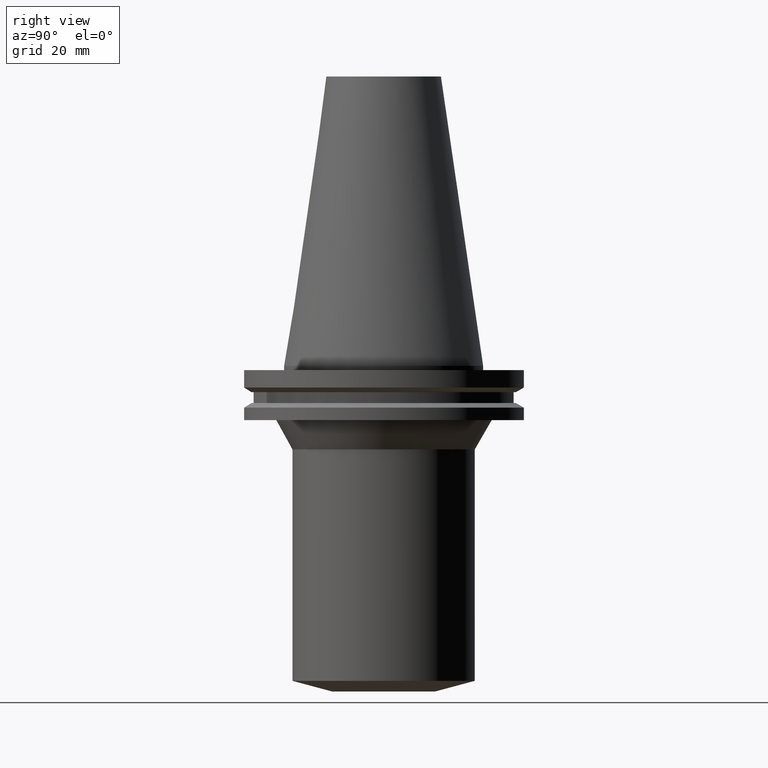
[diagram: clean part render]
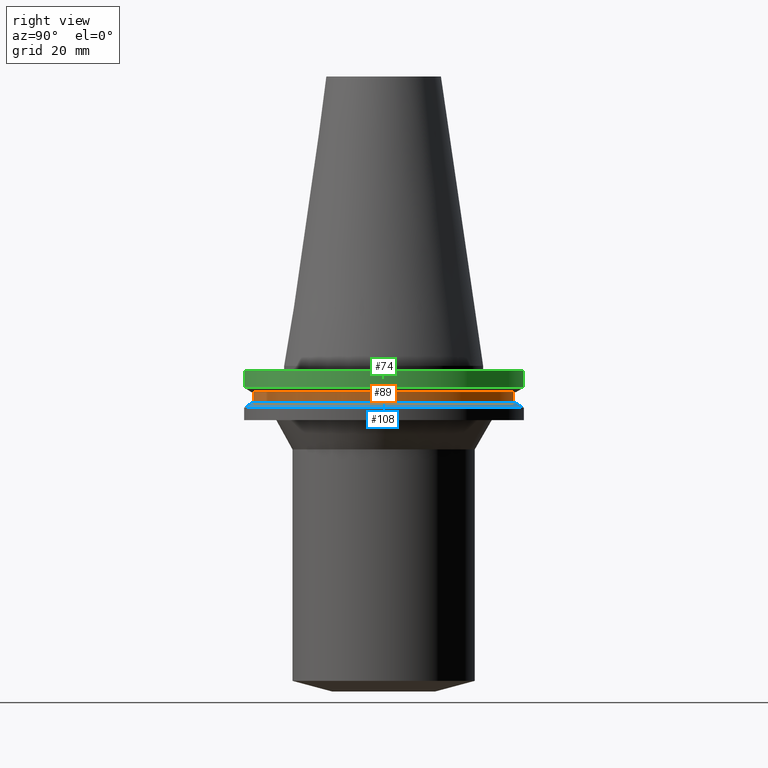
[diagram: same view with three faces highlighted in distinct colors, each labeled with its STEP entity id]
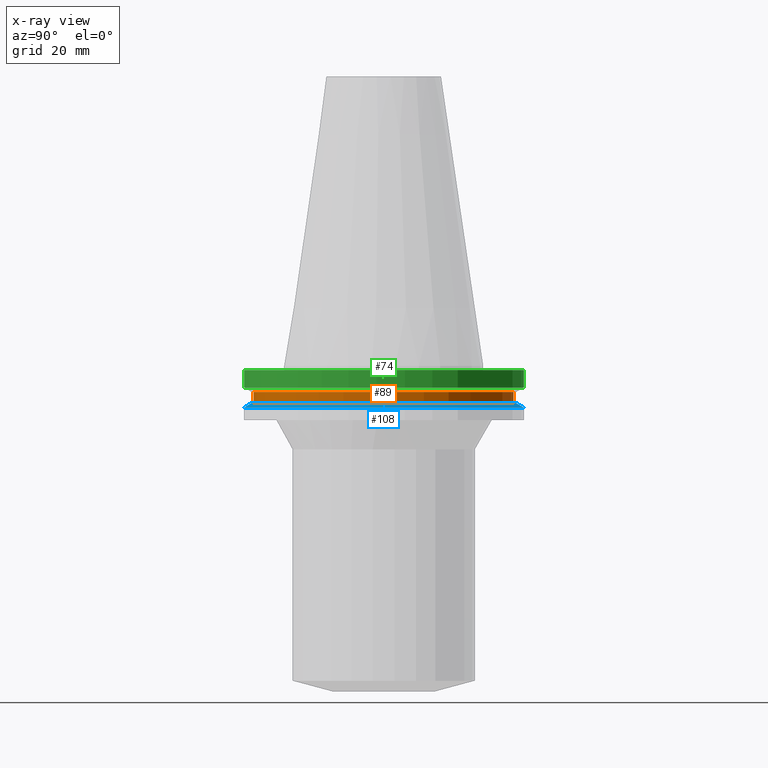
[diagram: x-ray of the same camera — body ghosted, the three highlighted faces saturated]
A machine part, right view with three faces highlighted in distinct colors.
The next image is the same camera in x-ray (body ghosted, the three faces saturated) — at least one of them is partly hidden behind the body in this view.
Their STEP definitions:

[orange] entity #89 — the highlighted cylindrical surface (bore or boss wall) has radius 45.645 mm, axis along (0, 0, -1).
#67=EDGE_CURVE('Unnamed[1]',#171,#171,#172,.T.);
#89=ADVANCED_FACE('Unnamed[1]',(#204,#205),#206,.T.);
#110=EDGE_CURVE('Unnamed[1]',#238,#238,#239,.T.);
#171=VERTEX_POINT('',#308);
#172=CIRCLE('',#309,45.645);
#204=FACE_BOUND('',#350,.T.);
#205=FACE_BOUND('',#351,.T.);
#206=CYLINDRICAL_SURFACE('',#352,45.645);
#238=VERTEX_POINT('',#392);
#239=CIRCLE('',#393,45.645);
#308=CARTESIAN_POINT('',(7.98469713044073E-016,45.645,-13.04));
#309=AXIS2_PLACEMENT_3D('',#463,#464,#465);
#350=EDGE_LOOP('',(#499));
#351=EDGE_LOOP('',(#500));
#352=AXIS2_PLACEMENT_3D('',#501,#502,#503);
#392=CARTESIAN_POINT('',(5.63337527607782E-016,45.645,-9.2));
#393=AXIS2_PLACEMENT_3D('',#539,#540,#541);
#463=CARTESIAN_POINT('',(7.98469713044074E-016,1.59693942608815E-015,-13.04));
#464=DIRECTION('',(6.12323399573677E-017,1.22464679914735E-016,-1.0));
#465=DIRECTION('',(-1.23259516440783E-032,1.0,1.22464679914735E-016));
#499=ORIENTED_EDGE('',*,*,#67,.F.);
#500=ORIENTED_EDGE('',*,*,#110,.T.);
#501=CARTESIAN_POINT('',(6.80903620325929E-016,1.36180724065186E-015,-11.12));
#502=DIRECTION('',(6.12323399573677E-017,1.22464679914735E-016,-1.0));
#503=DIRECTION('',(-1.23259516440783E-032,1.0,1.22464679914735E-016));
#539=CARTESIAN_POINT('',(5.63337527607783E-016,1.12667505521557E-015,-9.2));
#540=DIRECTION('',(6.12323399573677E-017,1.22464679914735E-016,-1.0));
#541=DIRECTION('',(-1.23259516440783E-032,1.0,1.22464679914735E-016));

[blue] entity #108 — the highlighted conical surface has half-angle 60 deg.
#76=EDGE_CURVE('Unnamed[1]',#185,#185,#186,.T.);
#108=ADVANCED_FACE('Unnamed[1]',(#234,#235),#236,.T.);
#112=EDGE_CURVE('Unnamed[1]',#241,#241,#242,.T.);
#185=VERTEX_POINT('',#326);
#186=CIRCLE('',#327,46.43053755);
#234=FACE_BOUND('',#387,.T.);
#235=FACE_BOUND('',#388,.T.);
#236=CONICAL_SURFACE('',#389,47.821518775,1.04719755103023);
#241=VERTEX_POINT('',#396);
#242=CIRCLE('',#397,49.2125);
#326=CARTESIAN_POINT('',(7.98469713044073E-016,46.43053755,-13.04));
#327=AXIS2_PLACEMENT_3D('',#478,#479,#480);
#387=EDGE_LOOP('',(#534));
#388=EDGE_LOOP('',(#535));
#389=AXIS2_PLACEMENT_3D('',#536,#537,#538);
#396=CARTESIAN_POINT('',(8.96819062732941E-016,49.2125,-14.64616677));
#397=AXIS2_PLACEMENT_3D('',#542,#543,#544);
#478=CARTESIAN_POINT('',(7.98469713044074E-016,1.59693942608815E-015,-13.04));
#479=DIRECTION('',(6.12323399573677E-017,1.22464679914735E-016,-1.0));
#480=DIRECTION('',(-1.23259516440783E-032,1.0,1.22464679914735E-016));
#534=ORIENTED_EDGE('',*,*,#112,.F.);
#535=ORIENTED_EDGE('',*,*,#76,.T.);
#536=CARTESIAN_POINT('',(8.47644387888508E-016,1.69528877577702E-015,-13.843083385));
#537=DIRECTION('',(6.12323399573677E-017,1.22464679914735E-016,-1.0));
#538=DIRECTION('',(-1.23259516440783E-032,1.0,1.22464679914735E-016));
#542=CARTESIAN_POINT('',(8.96819062732942E-016,1.79363812546588E-015,-14.64616677));
#543=DIRECTION('',(6.12323399573677E-017,1.22464679914735E-016,-1.0));
#544=DIRECTION('',(-1.23259516440783E-032,1.0,1.22464679914735E-016));

[green] entity #74 — the highlighted cylindrical surface (bore or boss wall) has radius 49.2125 mm, axis along (0, 0, -1).
#74=ADVANCED_FACE('Unnamed[1]',(#181,#182),#183,.T.);
#94=EDGE_CURVE('Unnamed[1]',#212,#212,#213,.T.);
#116=EDGE_CURVE('Unnamed[1]',#247,#247,#248,.T.);
#181=FACE_BOUND('',#321,.T.);
#182=FACE_BOUND('',#322,.T.);
#183=CYLINDRICAL_SURFACE('',#323,49.2125);
#212=VERTEX_POINT('',#360);
#213=CIRCLE('',#361,49.2125);
#247=VERTEX_POINT('',#404);
#248=CIRCLE('',#405,49.2125);
#321=EDGE_LOOP('',(#473));
#322=EDGE_LOOP('',(#474));
#323=AXIS2_PLACEMENT_3D('',#475,#476,#477);
#360=CARTESIAN_POINT('',(9.18485099360509E-017,49.2125,-1.49999999999999));
#361=AXIS2_PLACEMENT_3D('',#509,#510,#511);
#404=CARTESIAN_POINT('',(4.64988177918915E-016,49.2125,-7.59383323));
#405=AXIS2_PLACEMENT_3D('',#548,#549,#550);
#473=ORIENTED_EDGE('',*,*,#116,.F.);
#474=ORIENTED_EDGE('',*,*,#94,.T.);
#475=CARTESIAN_POINT('',(2.78418343927483E-016,5.56836687854967E-016,-4.546916615));
#476=DIRECTION('',(6.12323399573677E-017,1.22464679914735E-016,-1.0));
#477=DIRECTION('',(-1.23259516440783E-032,1.0,1.22464679914735E-016));
#509=CARTESIAN_POINT('',(9.18485099360515E-017,1.83697019872103E-016,-1.5));
#510=DIRECTION('',(6.12323399573677E-017,1.22464679914735E-016,-1.0));
#511=DIRECTION('',(-1.23259516440783E-032,1.0,1.22464679914735E-016));
#548=CARTESIAN_POINT('',(4.64988177918915E-016,9.29976355837831E-016,-7.59383323));
#549=DIRECTION('',(6.12323399573677E-017,1.22464679914735E-016,-1.0));
#550=DIRECTION('',(-1.23259516440783E-032,1.0,1.22464679914735E-016));